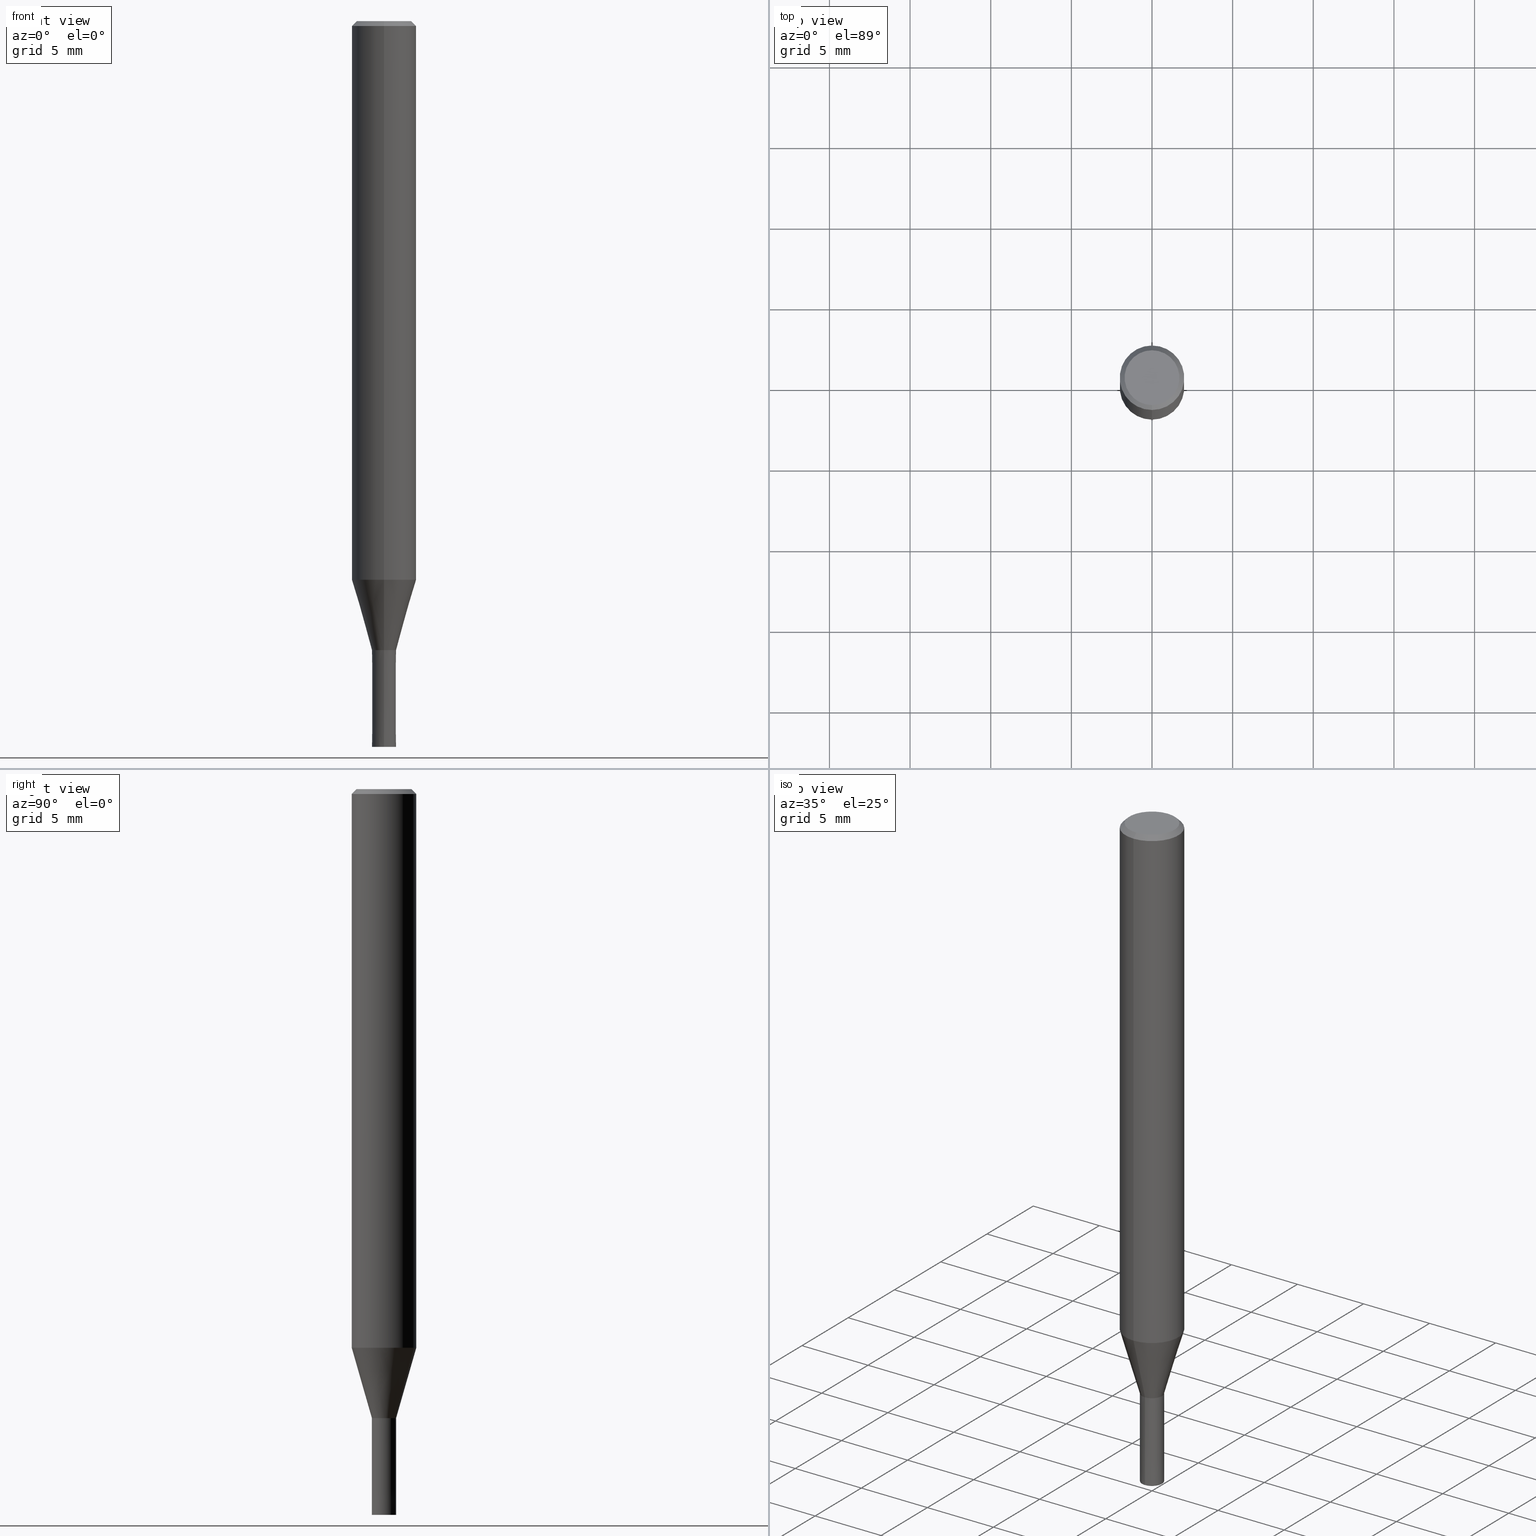
[diagram: canonical four-view strip — front | top / right | iso, engineering-drawing reading convention]
A machine part, canonical four-view strip (front | top / right | iso — engineering-drawing reading convention). The complete STEP part file that produces these views, byte-faithful:
ISO-10303-21;
HEADER;
FILE_DESCRIPTION(('no description'),'unknown implementation level');
FILE_NAME('HMS3015-0600-Huellk.stp','  ',('CIMSOURCE GmbH'),('CADClick - KiM GmbH - www.kimweb.de'),'unknown preprocess','ACIS','unknown authorization');
FILE_SCHEMA(('automotive_design'));
ENDSEC;
DATA;
#1=MECHANICAL_DESIGN_GEOMETRIC_PRESENTATION_REPRESENTATION(' ',(#14,#15,#16,#17,#18,#19,#20,#21,#22,#23,#24,#25,#26,#27,#28,#29,#30,#31,#32,#33,#34,#35,#36,#37,#38,#39,#40,#41,#42,#43,#44,#45,#46,#47,#48,#49,#50,#51,#52,#53,#54,#55,#56,#57,#58,#59,#60,#61,#62,#63,#64,#65,#66,#67,#68,#69,#70,#71,#72,#73,#74,#75,#76,#77,#78,#79,#80,#81,#82,#83,#84,#85,#86,#87,#88,#89),#10);
#2=PRODUCT_DEFINITION_CONTEXT('',#90,'design');
#3=APPLICATION_PROTOCOL_DEFINITION('INTERNATIONAL STANDARD','automotive_design',1994,#90);
#4=PRODUCT_CATEGORY_RELATIONSHIP('NONE','NONE',#91,#92);
#5=SHAPE_DEFINITION_REPRESENTATION(#93,#94);
#6=PRODUCT_DEFINITION_CONTEXT('',#95,'design');
#7=APPLICATION_PROTOCOL_DEFINITION('INTERNATIONAL STANDARD','automotive_design',1994,#95);
#8=PRODUCT_CATEGORY_RELATIONSHIP('NONE','NONE',#96,#97);
#9=SHAPE_DEFINITION_REPRESENTATION(#98,#99);
#10= (GEOMETRIC_REPRESENTATION_CONTEXT(3)GLOBAL_UNCERTAINTY_ASSIGNED_CONTEXT((#102))GLOBAL_UNIT_ASSIGNED_CONTEXT((#104,#105,#106))REPRESENTATION_CONTEXT('NONE','WORKSPACE'));
#14=STYLED_ITEM('',(#108),#109);
#15=STYLED_ITEM('',(#110),#111);
#16=STYLED_ITEM('',(#112),#113);
#17=STYLED_ITEM('',(#114),#115);
#18=STYLED_ITEM('',(#116),#117);
#19=STYLED_ITEM('',(#118),#119);
#20=STYLED_ITEM('',(#120),#121);
#21=STYLED_ITEM('',(#122),#123);
#22=STYLED_ITEM('',(#124),#125);
#23=STYLED_ITEM('',(#126),#127);
#24=STYLED_ITEM('',(#128),#129);
#25=STYLED_ITEM('',(#130),#131);
#26=STYLED_ITEM('',(#132),#133);
#27=STYLED_ITEM('',(#134),#135);
#28=STYLED_ITEM('',(#136),#137);
#29=STYLED_ITEM('',(#138),#139);
#30=STYLED_ITEM('',(#140),#141);
#31=STYLED_ITEM('',(#142),#143);
#32=STYLED_ITEM('',(#144),#145);
#33=STYLED_ITEM('',(#146),#147);
#34=STYLED_ITEM('',(#148),#149);
#35=STYLED_ITEM('',(#150),#151);
#36=STYLED_ITEM('',(#152),#153);
#37=STYLED_ITEM('',(#154),#155);
#38=STYLED_ITEM('',(#156),#157);
#39=STYLED_ITEM('',(#158),#159);
#40=STYLED_ITEM('',(#160),#161);
#41=STYLED_ITEM('',(#162),#163);
#42=STYLED_ITEM('',(#164),#165);
#43=STYLED_ITEM('',(#166),#167);
#44=STYLED_ITEM('',(#168),#169);
#45=STYLED_ITEM('',(#170),#171);
#46=STYLED_ITEM('',(#172),#173);
#47=STYLED_ITEM('',(#174),#175);
#48=STYLED_ITEM('',(#176),#177);
#49=STYLED_ITEM('',(#178),#179);
#50=STYLED_ITEM('',(#180),#181);
#51=STYLED_ITEM('',(#182),#183);
#52=STYLED_ITEM('',(#184),#185);
#53=STYLED_ITEM('',(#186),#187);
#54=STYLED_ITEM('',(#188),#189);
#55=STYLED_ITEM('',(#190),#191);
#56=STYLED_ITEM('',(#192),#193);
#57=STYLED_ITEM('',(#194),#195);
#58=STYLED_ITEM('',(#196),#197);
#59=STYLED_ITEM('',(#198),#199);
#60=STYLED_ITEM('',(#200),#201);
#61=STYLED_ITEM('',(#202),#203);
#62=STYLED_ITEM('',(#204),#205);
#63=STYLED_ITEM('',(#206),#207);
#64=STYLED_ITEM('',(#208),#209);
#65=STYLED_ITEM('',(#210),#211);
#66=STYLED_ITEM('',(#212),#213);
#67=STYLED_ITEM('',(#214),#215);
#68=STYLED_ITEM('',(#216),#217);
#69=STYLED_ITEM('',(#218),#219);
#70=STYLED_ITEM('',(#220),#221);
#71=STYLED_ITEM('',(#222),#223);
#72=STYLED_ITEM('',(#224),#225);
#73=STYLED_ITEM('',(#226),#227);
#74=STYLED_ITEM('',(#228),#229);
#75=STYLED_ITEM('',(#230),#231);
#76=STYLED_ITEM('',(#232),#233);
#77=STYLED_ITEM('',(#234),#235);
#78=STYLED_ITEM('',(#236),#237);
#79=STYLED_ITEM('',(#238),#239);
#80=STYLED_ITEM('',(#240),#241);
#81=STYLED_ITEM('',(#242),#243);
#82=STYLED_ITEM('',(#244),#245);
#83=STYLED_ITEM('',(#246),#247);
#84=STYLED_ITEM('',(#248),#249);
#85=STYLED_ITEM('',(#250),#251);
#86=STYLED_ITEM('',(#252),#253);
#87=STYLED_ITEM('',(#254),#255);
#88=STYLED_ITEM('',(#256),#257);
#89=STYLED_ITEM('',(#258),#259);
#90=APPLICATION_CONTEXT(' ');
#91=PRODUCT_CATEGORY('part','NONE');
#92=PRODUCT_RELATED_PRODUCT_CATEGORY('detail',' ',(#260));
#93=PRODUCT_DEFINITION_SHAPE('NONE','NONE',#261);
#94=ADVANCED_BREP_SHAPE_REPRESENTATION('1',(#241,#262),#10);
#95=APPLICATION_CONTEXT(' ');
#96=PRODUCT_CATEGORY('part','NONE');
#97=PRODUCT_RELATED_PRODUCT_CATEGORY('detail',' ',(#263));
#98=PRODUCT_DEFINITION_SHAPE('NONE','NONE',#264);
#99=ADVANCED_BREP_SHAPE_REPRESENTATION('2',(#187,#265),#10);
#102=UNCERTAINTY_MEASURE_WITH_UNIT(LENGTH_MEASURE(1.0E-006),#104,'','');
#104= (CONVERSION_BASED_UNIT('MILLIMETRE',#268)LENGTH_UNIT()NAMED_UNIT(#271));
#105= (NAMED_UNIT(#273)PLANE_ANGLE_UNIT()SI_UNIT($,.RADIAN.));
#106= (NAMED_UNIT(#273)SOLID_ANGLE_UNIT()SI_UNIT($,.STERADIAN.));
#108=PRESENTATION_STYLE_ASSIGNMENT((#279));
#109=EDGE_CURVE('',#157,#169,#280,.T.);
#110=PRESENTATION_STYLE_ASSIGNMENT((#281));
#111=ADVANCED_FACE('',(#282),#283,.F.);
#112=PRESENTATION_STYLE_ASSIGNMENT((#284));
#113=EDGE_CURVE('',#203,#157,#285,.T.);
#114=PRESENTATION_STYLE_ASSIGNMENT((#286));
#115=VERTEX_POINT('',#287);
#116=PRESENTATION_STYLE_ASSIGNMENT((#288));
#117=VERTEX_POINT('',#289);
#118=PRESENTATION_STYLE_ASSIGNMENT((#290));
#119=VERTEX_POINT('',#291);
#120=PRESENTATION_STYLE_ASSIGNMENT((#292));
#121=VERTEX_POINT('',#293);
#122=PRESENTATION_STYLE_ASSIGNMENT((#294));
#123=EDGE_CURVE('',#147,#233,#295,.T.);
#124=PRESENTATION_STYLE_ASSIGNMENT((#296));
#125=EDGE_CURVE('',#255,#225,#297,.T.);
#126=PRESENTATION_STYLE_ASSIGNMENT((#298));
#127=ADVANCED_FACE('',(#299,#300),#301,.T.);
#128=PRESENTATION_STYLE_ASSIGNMENT((#302));
#129=EDGE_CURVE('',#205,#253,#303,.T.);
#130=PRESENTATION_STYLE_ASSIGNMENT((#304));
#131=EDGE_CURVE('',#233,#147,#305,.T.);
#132=PRESENTATION_STYLE_ASSIGNMENT((#306));
#133=EDGE_CURVE('',#175,#121,#307,.T.);
#134=PRESENTATION_STYLE_ASSIGNMENT((#308));
#135=EDGE_CURVE('',#121,#179,#309,.T.);
#136=PRESENTATION_STYLE_ASSIGNMENT((#310));
#137=EDGE_CURVE('',#225,#255,#311,.T.);
#138=PRESENTATION_STYLE_ASSIGNMENT((#312));
#139=EDGE_CURVE('',#115,#259,#313,.T.);
#140=PRESENTATION_STYLE_ASSIGNMENT((#314));
#141=ADVANCED_FACE('',(#315),#316,.T.);
#142=PRESENTATION_STYLE_ASSIGNMENT((#317));
#143=ADVANCED_FACE('',(#318),#319,.T.);
#144=PRESENTATION_STYLE_ASSIGNMENT((#320));
#145=EDGE_CURVE('',#179,#121,#321,.T.);
#146=PRESENTATION_STYLE_ASSIGNMENT((#322));
#147=VERTEX_POINT('',#323);
#148=PRESENTATION_STYLE_ASSIGNMENT((#324));
#149=EDGE_CURVE('',#235,#115,#325,.T.);
#150=PRESENTATION_STYLE_ASSIGNMENT((#326));
#151=EDGE_CURVE('',#159,#197,#327,.T.);
#152=PRESENTATION_STYLE_ASSIGNMENT((#328));
#153=EDGE_CURVE('',#117,#249,#329,.T.);
#154=PRESENTATION_STYLE_ASSIGNMENT((#330));
#155=EDGE_CURVE('',#179,#245,#331,.T.);
#156=PRESENTATION_STYLE_ASSIGNMENT((#332));
#157=VERTEX_POINT('',#333);
#158=PRESENTATION_STYLE_ASSIGNMENT((#334));
#159=VERTEX_POINT('',#335);
#160=PRESENTATION_STYLE_ASSIGNMENT((#336));
#161=EDGE_CURVE('',#197,#159,#337,.T.);
#162=PRESENTATION_STYLE_ASSIGNMENT((#338));
#163=EDGE_CURVE('',#253,#205,#339,.T.);
#164=PRESENTATION_STYLE_ASSIGNMENT((#340));
#165=ADVANCED_FACE('',(#341),#342,.F.);
#166=PRESENTATION_STYLE_ASSIGNMENT((#343));
#167=EDGE_CURVE('',#259,#119,#344,.T.);
#168=PRESENTATION_STYLE_ASSIGNMENT((#345));
#169=VERTEX_POINT('',#346);
#170=PRESENTATION_STYLE_ASSIGNMENT((#347));
#171=ADVANCED_FACE('',(#348,#349),#350,.T.);
#172=PRESENTATION_STYLE_ASSIGNMENT((#351));
#173=ADVANCED_FACE('',(#352),#353,.T.);
#174=PRESENTATION_STYLE_ASSIGNMENT((#354));
#175=VERTEX_POINT('',#355);
#176=PRESENTATION_STYLE_ASSIGNMENT((#356));
#177=EDGE_CURVE('',#247,#169,#357,.T.);
#178=PRESENTATION_STYLE_ASSIGNMENT((#358));
#179=VERTEX_POINT('',#359);
#180=PRESENTATION_STYLE_ASSIGNMENT((#360));
#181=EDGE_CURVE('',#147,#159,#361,.T.);
#182=PRESENTATION_STYLE_ASSIGNMENT((#362));
#183=ADVANCED_FACE('',(#363),#364,.T.);
#184=PRESENTATION_STYLE_ASSIGNMENT((#365));
#185=ADVANCED_FACE('',(#366),#367,.T.);
#186=PRESENTATION_STYLE_ASSIGNMENT((#368));
#187=MANIFOLD_SOLID_BREP('2',#369);
#188=PRESENTATION_STYLE_ASSIGNMENT((#370));
#189=ADVANCED_FACE('',(#371),#372,.T.);
#190=PRESENTATION_STYLE_ASSIGNMENT((#373));
#191=ADVANCED_FACE('',(#374),#375,.T.);
#192=PRESENTATION_STYLE_ASSIGNMENT((#376));
#193=ADVANCED_FACE('',(#377),#378,.T.);
#194=PRESENTATION_STYLE_ASSIGNMENT((#379));
#195=EDGE_CURVE('',#247,#203,#380,.T.);
#196=PRESENTATION_STYLE_ASSIGNMENT((#381));
#197=VERTEX_POINT('',#382);
#198=PRESENTATION_STYLE_ASSIGNMENT((#383));
#199=ADVANCED_FACE('',(#384),#385,.T.);
#200=PRESENTATION_STYLE_ASSIGNMENT((#386));
#201=EDGE_CURVE('',#245,#175,#387,.T.);
#202=PRESENTATION_STYLE_ASSIGNMENT((#388));
#203=VERTEX_POINT('',#389);
#204=PRESENTATION_STYLE_ASSIGNMENT((#390));
#205=VERTEX_POINT('',#391);
#206=PRESENTATION_STYLE_ASSIGNMENT((#392));
#207=EDGE_CURVE('',#205,#197,#393,.T.);
#208=PRESENTATION_STYLE_ASSIGNMENT((#394));
#209=EDGE_CURVE('',#159,#253,#395,.T.);
#210=PRESENTATION_STYLE_ASSIGNMENT((#396));
#211=EDGE_CURVE('',#157,#203,#397,.T.);
#212=PRESENTATION_STYLE_ASSIGNMENT((#398));
#213=ADVANCED_FACE('',(#399),#400,.T.);
#214=PRESENTATION_STYLE_ASSIGNMENT((#401));
#215=EDGE_CURVE('',#225,#117,#402,.T.);
#216=PRESENTATION_STYLE_ASSIGNMENT((#403));
#217=EDGE_CURVE('',#249,#255,#404,.T.);
#218=PRESENTATION_STYLE_ASSIGNMENT((#405));
#219=EDGE_CURVE('',#119,#235,#406,.T.);
#220=PRESENTATION_STYLE_ASSIGNMENT((#407));
#221=ADVANCED_FACE('',(#408),#409,.T.);
#222=PRESENTATION_STYLE_ASSIGNMENT((#410));
#223=EDGE_CURVE('',#119,#259,#411,.T.);
#224=PRESENTATION_STYLE_ASSIGNMENT((#412));
#225=VERTEX_POINT('',#413);
#226=PRESENTATION_STYLE_ASSIGNMENT((#414));
#227=EDGE_CURVE('',#169,#247,#415,.T.);
#228=PRESENTATION_STYLE_ASSIGNMENT((#416));
#229=EDGE_CURVE('',#115,#235,#417,.T.);
#230=PRESENTATION_STYLE_ASSIGNMENT((#418));
#231=ADVANCED_FACE('',(#419),#420,.T.);
#232=PRESENTATION_STYLE_ASSIGNMENT((#421));
#233=VERTEX_POINT('',#422);
#234=PRESENTATION_STYLE_ASSIGNMENT((#423));
#235=VERTEX_POINT('',#424);
#236=PRESENTATION_STYLE_ASSIGNMENT((#425));
#237=ADVANCED_FACE('',(#426,#427),#428,.T.);
#238=PRESENTATION_STYLE_ASSIGNMENT((#429));
#239=ADVANCED_FACE('',(#430,#431),#432,.T.);
#240=PRESENTATION_STYLE_ASSIGNMENT((#433));
#241=MANIFOLD_SOLID_BREP('1',#434);
#242=PRESENTATION_STYLE_ASSIGNMENT((#435));
#243=EDGE_CURVE('',#249,#117,#436,.T.);
#244=PRESENTATION_STYLE_ASSIGNMENT((#437));
#245=VERTEX_POINT('',#438);
#246=PRESENTATION_STYLE_ASSIGNMENT((#439));
#247=VERTEX_POINT('',#440);
#248=PRESENTATION_STYLE_ASSIGNMENT((#441));
#249=VERTEX_POINT('',#442);
#250=PRESENTATION_STYLE_ASSIGNMENT((#443));
#251=EDGE_CURVE('',#197,#233,#444,.T.);
#252=PRESENTATION_STYLE_ASSIGNMENT((#445));
#253=VERTEX_POINT('',#446);
#254=PRESENTATION_STYLE_ASSIGNMENT((#447));
#255=VERTEX_POINT('',#448);
#256=PRESENTATION_STYLE_ASSIGNMENT((#449));
#257=EDGE_CURVE('',#175,#245,#450,.T.);
#258=PRESENTATION_STYLE_ASSIGNMENT((#451));
#259=VERTEX_POINT('',#452);
#260=PRODUCT('1','1','PART-1-DESC',(#453));
#261=PRODUCT_DEFINITION('NONE','NONE',#454,#2);
#262=AXIS2_PLACEMENT_3D('',#455,#456,#457);
#263=PRODUCT('2','2','PART-2-DESC',(#458));
#264=PRODUCT_DEFINITION('NONE','NONE',#459,#6);
#265=AXIS2_PLACEMENT_3D('',#460,#461,#462);
#268=LENGTH_MEASURE_WITH_UNIT(LENGTH_MEASURE(1.0),#463);
#271=DIMENSIONAL_EXPONENTS(1.0,0.0,0.0,0.0,0.0,0.0,0.0);
#273=DIMENSIONAL_EXPONENTS(0.0,0.0,0.0,0.0,0.0,0.0,0.0);
#279=CURVE_STYLE('',#464,POSITIVE_LENGTH_MEASURE(1.0E-006),#465);
#280=LINE('',#466,#467);
#281=SURFACE_STYLE_USAGE(.BOTH.,#468);
#282=FACE_OUTER_BOUND('',#469,.T.);
#283=CYLINDRICAL_SURFACE('',#470,0.3375);
#284=CURVE_STYLE('',#471,POSITIVE_LENGTH_MEASURE(1.0E-006),#472);
#285=CIRCLE('',#473,0.74995);
#286=POINT_STYLE(' ',#474,POSITIVE_LENGTH_MEASURE(1.0E-006),#475);
#287=CARTESIAN_POINT('',(0.0,0.7499,-39.0));
#288=POINT_STYLE(' ',#476,POSITIVE_LENGTH_MEASURE(1.0E-006),#477);
#289=CARTESIAN_POINT('',(4.13304644415052E-017,-0.3375,-39.0));
#290=POINT_STYLE(' ',#478,POSITIVE_LENGTH_MEASURE(1.0E-006),#479);
#291=CARTESIAN_POINT('',(9.18454765366783E-017,-0.75,-45.0));
#292=POINT_STYLE(' ',#480,POSITIVE_LENGTH_MEASURE(1.0E-006),#481);
#293=CARTESIAN_POINT('',(4.13304644415052E-017,-0.3375,-39.0));
#294=CURVE_STYLE('',#482,POSITIVE_LENGTH_MEASURE(1.0E-006),#483);
#295=CIRCLE('',#484,2.0);
#296=CURVE_STYLE('',#485,POSITIVE_LENGTH_MEASURE(1.0E-006),#486);
#297=CIRCLE('',#487,0.3375);
#298=SURFACE_STYLE_USAGE(.BOTH.,#488);
#299=FACE_OUTER_BOUND('',#489,.T.);
#300=FACE_BOUND('',#490,.T.);
#301=PLANE('',#491);
#302=CURVE_STYLE('',#492,POSITIVE_LENGTH_MEASURE(1.0E-006),#493);
#303=CIRCLE('',#494,1.7);
#304=CURVE_STYLE('',#495,POSITIVE_LENGTH_MEASURE(1.0E-006),#496);
#305=CIRCLE('',#497,2.0);
#306=CURVE_STYLE('',#498,POSITIVE_LENGTH_MEASURE(1.0E-006),#499);
#307=LINE('',#500,#501);
#308=CURVE_STYLE('',#502,POSITIVE_LENGTH_MEASURE(1.0E-006),#503);
#309=CIRCLE('',#504,0.3375);
#310=CURVE_STYLE('',#505,POSITIVE_LENGTH_MEASURE(1.0E-006),#506);
#311=CIRCLE('',#507,0.3375);
#312=CURVE_STYLE('',#508,POSITIVE_LENGTH_MEASURE(1.0E-006),#509);
#313=LINE('',#510,#511);
#314=SURFACE_STYLE_USAGE(.BOTH.,#512);
#315=FACE_OUTER_BOUND('',#513,.T.);
#316=CYLINDRICAL_SURFACE('',#514,0.3375);
#317=SURFACE_STYLE_USAGE(.BOTH.,#515);
#318=FACE_OUTER_BOUND('',#516,.T.);
#319=CYLINDRICAL_SURFACE('',#517,0.3375);
#320=CURVE_STYLE('',#518,POSITIVE_LENGTH_MEASURE(1.0E-006),#519);
#321=CIRCLE('',#520,0.3375);
#322=POINT_STYLE(' ',#521,POSITIVE_LENGTH_MEASURE(1.0E-006),#522);
#323=CARTESIAN_POINT('',(2.44921270764475E-016,-2.0,-34.641));
#324=CURVE_STYLE('',#523,POSITIVE_LENGTH_MEASURE(1.0E-006),#524);
#325=CIRCLE('',#525,0.7499);
#326=CURVE_STYLE('',#526,POSITIVE_LENGTH_MEASURE(1.0E-006),#527);
#327=CIRCLE('',#528,2.0);
#328=CURVE_STYLE('',#529,POSITIVE_LENGTH_MEASURE(1.0E-006),#530);
#329=CIRCLE('',#531,0.3375);
#330=CURVE_STYLE('',#532,POSITIVE_LENGTH_MEASURE(1.0E-006),#533);
#331=LINE('',#534,#535);
#332=POINT_STYLE(' ',#536,POSITIVE_LENGTH_MEASURE(1.0E-006),#537);
#333=CARTESIAN_POINT('',(9.18393535049092E-017,-0.74995,-39.0));
#334=POINT_STYLE(' ',#538,POSITIVE_LENGTH_MEASURE(1.0E-006),#539);
#335=CARTESIAN_POINT('',(2.44921270764475E-016,-2.0,-0.299999999999997));
#336=CURVE_STYLE('',#540,POSITIVE_LENGTH_MEASURE(1.0E-006),#541);
#337=CIRCLE('',#542,2.0);
#338=CURVE_STYLE('',#543,POSITIVE_LENGTH_MEASURE(1.0E-006),#544);
#339=CIRCLE('',#545,1.7);
#340=SURFACE_STYLE_USAGE(.BOTH.,#546);
#341=FACE_OUTER_BOUND('',#547,.T.);
#342=CYLINDRICAL_SURFACE('',#548,0.3375);
#343=CURVE_STYLE('',#549,POSITIVE_LENGTH_MEASURE(1.0E-006),#550);
#344=CIRCLE('',#551,0.75);
#345=POINT_STYLE(' ',#552,POSITIVE_LENGTH_MEASURE(1.0E-006),#553);
#346=CARTESIAN_POINT('',(2.44915147732706E-016,-1.99995,-34.641));
#347=SURFACE_STYLE_USAGE(.BOTH.,#554);
#348=FACE_BOUND('',#555,.T.);
#349=FACE_OUTER_BOUND('',#556,.T.);
#350=PLANE('',#557);
#351=SURFACE_STYLE_USAGE(.BOTH.,#558);
#352=FACE_OUTER_BOUND('',#559,.T.);
#353=CYLINDRICAL_SURFACE('',#560,2.0);
#354=POINT_STYLE(' ',#561,POSITIVE_LENGTH_MEASURE(1.0E-006),#562);
#355=CARTESIAN_POINT('',(4.13304644415052E-017,-0.3375,-44.9));
#356=CURVE_STYLE('',#563,POSITIVE_LENGTH_MEASURE(1.0E-006),#564);
#357=CIRCLE('',#565,1.99995);
#358=POINT_STYLE(' ',#566,POSITIVE_LENGTH_MEASURE(1.0E-006),#567);
#359=CARTESIAN_POINT('',(0.0,0.3375,-39.0));
#360=CURVE_STYLE('',#568,POSITIVE_LENGTH_MEASURE(1.0E-006),#569);
#361=LINE('',#570,#571);
#362=SURFACE_STYLE_USAGE(.BOTH.,#572);
#363=FACE_OUTER_BOUND('',#573,.T.);
#364=CONICAL_SURFACE('',#574,0.74995,1.66666666651216E-005);
#365=SURFACE_STYLE_USAGE(.BOTH.,#575);
#366=FACE_OUTER_BOUND('',#576,.T.);
#367=PLANE('',#577);
#368=SURFACE_STYLE_USAGE(.BOTH.,#578);
#369=CLOSED_SHELL('',(#111,#191,#237,#183,#239,#165));
#370=SURFACE_STYLE_USAGE(.BOTH.,#579);
#371=FACE_OUTER_BOUND('',#580,.T.);
#372=CYLINDRICAL_SURFACE('',#581,2.0);
#373=SURFACE_STYLE_USAGE(.BOTH.,#582);
#374=FACE_OUTER_BOUND('',#583,.T.);
#375=CONICAL_SURFACE('',#584,0.74995,1.66666666651216E-005);
#376=SURFACE_STYLE_USAGE(.BOTH.,#585);
#377=FACE_OUTER_BOUND('',#586,.T.);
#378=CONICAL_SURFACE('',#587,1.37495,0.279268973819818);
#379=CURVE_STYLE('',#588,POSITIVE_LENGTH_MEASURE(1.0E-006),#589);
#380=LINE('',#590,#591);
#381=POINT_STYLE(' ',#592,POSITIVE_LENGTH_MEASURE(1.0E-006),#593);
#382=CARTESIAN_POINT('',(0.0,2.0,-0.299999999999997));
#383=SURFACE_STYLE_USAGE(.BOTH.,#594);
#384=FACE_OUTER_BOUND('',#595,.T.);
#385=CONICAL_SURFACE('',#596,1.85,0.785398163397453);
#386=CURVE_STYLE('',#597,POSITIVE_LENGTH_MEASURE(1.0E-006),#598);
#387=CIRCLE('',#599,0.3375);
#388=POINT_STYLE(' ',#600,POSITIVE_LENGTH_MEASURE(1.0E-006),#601);
#389=CARTESIAN_POINT('',(0.0,0.74995,-39.0));
#390=POINT_STYLE(' ',#602,POSITIVE_LENGTH_MEASURE(1.0E-006),#603);
#391=CARTESIAN_POINT('',(0.0,1.7,0.0));
#392=CURVE_STYLE('',#604,POSITIVE_LENGTH_MEASURE(1.0E-006),#605);
#393=LINE('',#606,#607);
#394=CURVE_STYLE('',#608,POSITIVE_LENGTH_MEASURE(1.0E-006),#609);
#395=LINE('',#610,#611);
#396=CURVE_STYLE('',#612,POSITIVE_LENGTH_MEASURE(1.0E-006),#613);
#397=CIRCLE('',#614,0.74995);
#398=SURFACE_STYLE_USAGE(.BOTH.,#615);
#399=FACE_OUTER_BOUND('',#616,.T.);
#400=CONICAL_SURFACE('',#617,1.37495,0.279268973819818);
#401=CURVE_STYLE('',#618,POSITIVE_LENGTH_MEASURE(1.0E-006),#619);
#402=LINE('',#620,#621);
#403=CURVE_STYLE('',#622,POSITIVE_LENGTH_MEASURE(1.0E-006),#623);
#404=LINE('',#624,#625);
#405=CURVE_STYLE('',#626,POSITIVE_LENGTH_MEASURE(1.0E-006),#627);
#406=LINE('',#628,#629);
#407=SURFACE_STYLE_USAGE(.BOTH.,#630);
#408=FACE_OUTER_BOUND('',#631,.T.);
#409=CONICAL_SURFACE('',#632,1.85,0.785398163397453);
#410=CURVE_STYLE('',#633,POSITIVE_LENGTH_MEASURE(1.0E-006),#634);
#411=CIRCLE('',#635,0.75);
#412=POINT_STYLE(' ',#636,POSITIVE_LENGTH_MEASURE(1.0E-006),#637);
#413=CARTESIAN_POINT('',(4.13304644415052E-017,-0.3375,-45.0));
#414=CURVE_STYLE('',#638,POSITIVE_LENGTH_MEASURE(1.0E-006),#639);
#415=CIRCLE('',#640,1.99995);
#416=CURVE_STYLE('',#641,POSITIVE_LENGTH_MEASURE(1.0E-006),#642);
#417=CIRCLE('',#643,0.7499);
#418=SURFACE_STYLE_USAGE(.BOTH.,#644);
#419=FACE_OUTER_BOUND('',#645,.T.);
#420=PLANE('',#646);
#421=POINT_STYLE(' ',#647,POSITIVE_LENGTH_MEASURE(1.0E-006),#648);
#422=CARTESIAN_POINT('',(0.0,2.0,-34.641));
#423=POINT_STYLE(' ',#649,POSITIVE_LENGTH_MEASURE(1.0E-006),#650);
#424=CARTESIAN_POINT('',(9.18332304731401E-017,-0.7499,-39.0));
#425=SURFACE_STYLE_USAGE(.BOTH.,#651);
#426=FACE_OUTER_BOUND('',#652,.T.);
#427=FACE_BOUND('',#653,.T.);
#428=PLANE('',#654);
#429=SURFACE_STYLE_USAGE(.BOTH.,#655);
#430=FACE_OUTER_BOUND('',#656,.T.);
#431=FACE_BOUND('',#657,.T.);
#432=PLANE('',#658);
#433=SURFACE_STYLE_USAGE(.BOTH.,#659);
#434=CLOSED_SHELL('',(#141,#193,#189,#221,#127,#185,#199,#173,#213,#171,#143,#231));
#435=CURVE_STYLE('',#660,POSITIVE_LENGTH_MEASURE(1.0E-006),#661);
#436=CIRCLE('',#662,0.3375);
#437=POINT_STYLE(' ',#663,POSITIVE_LENGTH_MEASURE(1.0E-006),#664);
#438=CARTESIAN_POINT('',(0.0,0.3375,-44.9));
#439=POINT_STYLE(' ',#665,POSITIVE_LENGTH_MEASURE(1.0E-006),#666);
#440=CARTESIAN_POINT('',(0.0,1.99995,-34.641));
#441=POINT_STYLE(' ',#667,POSITIVE_LENGTH_MEASURE(1.0E-006),#668);
#442=CARTESIAN_POINT('',(0.0,0.3375,-39.0));
#443=CURVE_STYLE('',#669,POSITIVE_LENGTH_MEASURE(1.0E-006),#670);
#444=LINE('',#671,#672);
#445=POINT_STYLE(' ',#673,POSITIVE_LENGTH_MEASURE(1.0E-006),#674);
#446=CARTESIAN_POINT('',(2.08183080149804E-016,-1.7,0.0));
#447=POINT_STYLE(' ',#675,POSITIVE_LENGTH_MEASURE(1.0E-006),#676);
#448=CARTESIAN_POINT('',(0.0,0.3375,-45.0));
#449=CURVE_STYLE('',#677,POSITIVE_LENGTH_MEASURE(1.0E-006),#678);
#450=CIRCLE('',#679,0.3375);
#451=POINT_STYLE(' ',#680,POSITIVE_LENGTH_MEASURE(1.0E-006),#681);
#452=CARTESIAN_POINT('',(0.0,0.75,-45.0));
#453=PRODUCT_CONTEXT('',#90,'mechanical');
#454=PRODUCT_DEFINITION_FORMATION_WITH_SPECIFIED_SOURCE(' ','NONE',#260,.NOT_KNOWN.);
#455=CARTESIAN_POINT('',(0.0,0.0,0.0));
#456=DIRECTION('',(0.0,0.0,1.0));
#457=DIRECTION('',(1.0,0.0,0.0));
#458=PRODUCT_CONTEXT('',#95,'mechanical');
#459=PRODUCT_DEFINITION_FORMATION_WITH_SPECIFIED_SOURCE(' ','NONE',#263,.NOT_KNOWN.);
#460=CARTESIAN_POINT('',(0.0,0.0,0.0));
#461=DIRECTION('',(0.0,0.0,1.0));
#462=DIRECTION('',(1.0,0.0,0.0));
#463= (NAMED_UNIT(#271)LENGTH_UNIT()SI_UNIT(.MILLI.,.METRE.));
#464=DRAUGHTING_PRE_DEFINED_CURVE_FONT('continuous');
#465=COLOUR_RGB('',0.498039215803146,0.498039215803146,0.498039215803146);
#466=CARTESIAN_POINT('',(1.68377250618808E-016,-1.37495,-36.8205));
#467=VECTOR('',#683,1.0);
#468=SURFACE_SIDE_STYLE('',(#684));
#469=EDGE_LOOP('',(#685,#686,#687,#688));
#470=AXIS2_PLACEMENT_3D('',#689,#690,#691);
#471=DRAUGHTING_PRE_DEFINED_CURVE_FONT('continuous');
#472=COLOUR_RGB('',0.498039215803146,0.498039215803146,0.498039215803146);
#473=AXIS2_PLACEMENT_3D('',#692,#693,#694);
#474=PRE_DEFINED_MARKER('');
#475=COLOUR_RGB('',0.800000011920929,0.800000011920929,0.800000011920929);
#476=PRE_DEFINED_MARKER('');
#477=COLOUR_RGB('',0.800000011920929,0.800000011920929,0.800000011920929);
#478=PRE_DEFINED_MARKER('');
#479=COLOUR_RGB('',0.800000011920929,0.800000011920929,0.800000011920929);
#480=PRE_DEFINED_MARKER('');
#481=COLOUR_RGB('',0.498039215803146,0.498039215803146,0.498039215803146);
#482=DRAUGHTING_PRE_DEFINED_CURVE_FONT('continuous');
#483=COLOUR_RGB('',0.498039215803146,0.498039215803146,0.498039215803146);
#484=AXIS2_PLACEMENT_3D('',#695,#696,#697);
#485=DRAUGHTING_PRE_DEFINED_CURVE_FONT('continuous');
#486=COLOUR_RGB('',0.800000011920929,0.800000011920929,0.800000011920929);
#487=AXIS2_PLACEMENT_3D('',#698,#699,#700);
#488=SURFACE_SIDE_STYLE('',(#701));
#489=EDGE_LOOP('',(#702,#703));
#490=EDGE_LOOP('',(#704,#705));
#491=AXIS2_PLACEMENT_3D('',#706,#707,#708);
#492=DRAUGHTING_PRE_DEFINED_CURVE_FONT('continuous');
#493=COLOUR_RGB('',0.498039215803146,0.498039215803146,0.498039215803146);
#494=AXIS2_PLACEMENT_3D('',#709,#710,#711);
#495=DRAUGHTING_PRE_DEFINED_CURVE_FONT('continuous');
#496=COLOUR_RGB('',0.498039215803146,0.498039215803146,0.498039215803146);
#497=AXIS2_PLACEMENT_3D('',#712,#713,#714);
#498=DRAUGHTING_PRE_DEFINED_CURVE_FONT('continuous');
#499=COLOUR_RGB('',0.498039215803146,0.498039215803146,0.498039215803146);
#500=CARTESIAN_POINT('',(4.13304644415052E-017,-0.3375,-41.95));
#501=VECTOR('',#715,1.0);
#502=DRAUGHTING_PRE_DEFINED_CURVE_FONT('continuous');
#503=COLOUR_RGB('',0.498039215803146,0.498039215803146,0.498039215803146);
#504=AXIS2_PLACEMENT_3D('',#716,#717,#718);
#505=DRAUGHTING_PRE_DEFINED_CURVE_FONT('continuous');
#506=COLOUR_RGB('',0.800000011920929,0.800000011920929,0.800000011920929);
#507=AXIS2_PLACEMENT_3D('',#719,#720,#721);
#508=DRAUGHTING_PRE_DEFINED_CURVE_FONT('continuous');
#509=COLOUR_RGB('',0.800000011920929,0.800000011920929,0.800000011920929);
#510=CARTESIAN_POINT('',(-9.18393535049092E-017,0.74995,-42.0));
#511=VECTOR('',#722,1.0);
#512=SURFACE_SIDE_STYLE('',(#723));
#513=EDGE_LOOP('',(#724,#725,#726,#727));
#514=AXIS2_PLACEMENT_3D('',#728,#729,#730);
#515=SURFACE_SIDE_STYLE('',(#731));
#516=EDGE_LOOP('',(#732,#733,#734,#735));
#517=AXIS2_PLACEMENT_3D('',#736,#737,#738);
#518=DRAUGHTING_PRE_DEFINED_CURVE_FONT('continuous');
#519=COLOUR_RGB('',0.498039215803146,0.498039215803146,0.498039215803146);
#520=AXIS2_PLACEMENT_3D('',#739,#740,#741);
#521=PRE_DEFINED_MARKER('');
#522=COLOUR_RGB('',0.498039215803146,0.498039215803146,0.498039215803146);
#523=DRAUGHTING_PRE_DEFINED_CURVE_FONT('continuous');
#524=COLOUR_RGB('',0.800000011920929,0.800000011920929,0.800000011920929);
#525=AXIS2_PLACEMENT_3D('',#742,#743,#744);
#526=DRAUGHTING_PRE_DEFINED_CURVE_FONT('continuous');
#527=COLOUR_RGB('',0.498039215803146,0.498039215803146,0.498039215803146);
#528=AXIS2_PLACEMENT_3D('',#745,#746,#747);
#529=DRAUGHTING_PRE_DEFINED_CURVE_FONT('continuous');
#530=COLOUR_RGB('',0.800000011920929,0.800000011920929,0.800000011920929);
#531=AXIS2_PLACEMENT_3D('',#748,#749,#750);
#532=DRAUGHTING_PRE_DEFINED_CURVE_FONT('continuous');
#533=COLOUR_RGB('',0.498039215803146,0.498039215803146,0.498039215803146);
#534=CARTESIAN_POINT('',(-4.13304644415052E-017,0.3375,-41.95));
#535=VECTOR('',#751,1.0);
#536=PRE_DEFINED_MARKER('');
#537=COLOUR_RGB('',0.498039215803146,0.498039215803146,0.498039215803146);
#538=PRE_DEFINED_MARKER('');
#539=COLOUR_RGB('',0.498039215803146,0.498039215803146,0.498039215803146);
#540=DRAUGHTING_PRE_DEFINED_CURVE_FONT('continuous');
#541=COLOUR_RGB('',0.498039215803146,0.498039215803146,0.498039215803146);
#542=AXIS2_PLACEMENT_3D('',#752,#753,#754);
#543=DRAUGHTING_PRE_DEFINED_CURVE_FONT('continuous');
#544=COLOUR_RGB('',0.498039215803146,0.498039215803146,0.498039215803146);
#545=AXIS2_PLACEMENT_3D('',#755,#756,#757);
#546=SURFACE_SIDE_STYLE('',(#758));
#547=EDGE_LOOP('',(#759,#760,#761,#762));
#548=AXIS2_PLACEMENT_3D('',#763,#764,#765);
#549=DRAUGHTING_PRE_DEFINED_CURVE_FONT('continuous');
#550=COLOUR_RGB('',0.800000011920929,0.800000011920929,0.800000011920929);
#551=AXIS2_PLACEMENT_3D('',#766,#767,#768);
#552=PRE_DEFINED_MARKER('');
#553=COLOUR_RGB('',0.498039215803146,0.498039215803146,0.498039215803146);
#554=SURFACE_SIDE_STYLE('',(#769));
#555=EDGE_LOOP('',(#770,#771));
#556=EDGE_LOOP('',(#772,#773));
#557=AXIS2_PLACEMENT_3D('',#774,#775,#776);
#558=SURFACE_SIDE_STYLE('',(#777));
#559=EDGE_LOOP('',(#778,#779,#780,#781));
#560=AXIS2_PLACEMENT_3D('',#782,#783,#784);
#561=PRE_DEFINED_MARKER('');
#562=COLOUR_RGB('',0.498039215803146,0.498039215803146,0.498039215803146);
#563=DRAUGHTING_PRE_DEFINED_CURVE_FONT('continuous');
#564=COLOUR_RGB('',0.498039215803146,0.498039215803146,0.498039215803146);
#565=AXIS2_PLACEMENT_3D('',#785,#786,#787);
#566=PRE_DEFINED_MARKER('');
#567=COLOUR_RGB('',0.498039215803146,0.498039215803146,0.498039215803146);
#568=DRAUGHTING_PRE_DEFINED_CURVE_FONT('continuous');
#569=COLOUR_RGB('',0.498039215803146,0.498039215803146,0.498039215803146);
#570=CARTESIAN_POINT('',(2.44921270764475E-016,-2.0,-17.4705));
#571=VECTOR('',#788,1.0);
#572=SURFACE_SIDE_STYLE('',(#789));
#573=EDGE_LOOP('',(#790,#791,#792,#793));
#574=AXIS2_PLACEMENT_3D('',#794,#795,#796);
#575=SURFACE_SIDE_STYLE('',(#797));
#576=EDGE_LOOP('',(#798,#799));
#577=AXIS2_PLACEMENT_3D('',#800,#801,#802);
#578=SURFACE_SIDE_STYLE('',(#803));
#579=SURFACE_SIDE_STYLE('',(#804));
#580=EDGE_LOOP('',(#805,#806,#807,#808));
#581=AXIS2_PLACEMENT_3D('',#809,#810,#811);
#582=SURFACE_SIDE_STYLE('',(#812));
#583=EDGE_LOOP('',(#813,#814,#815,#816));
#584=AXIS2_PLACEMENT_3D('',#817,#818,#819);
#585=SURFACE_SIDE_STYLE('',(#820));
#586=EDGE_LOOP('',(#821,#822,#823,#824));
#587=AXIS2_PLACEMENT_3D('',#825,#826,#827);
#588=DRAUGHTING_PRE_DEFINED_CURVE_FONT('continuous');
#589=COLOUR_RGB('',0.498039215803146,0.498039215803146,0.498039215803146);
#590=CARTESIAN_POINT('',(-1.68377250618808E-016,1.37495,-36.8205));
#591=VECTOR('',#828,1.0);
#592=PRE_DEFINED_MARKER('');
#593=COLOUR_RGB('',0.498039215803146,0.498039215803146,0.498039215803146);
#594=SURFACE_SIDE_STYLE('',(#829));
#595=EDGE_LOOP('',(#830,#831,#832,#833));
#596=AXIS2_PLACEMENT_3D('',#834,#835,#836);
#597=DRAUGHTING_PRE_DEFINED_CURVE_FONT('continuous');
#598=COLOUR_RGB('',0.498039215803146,0.498039215803146,0.498039215803146);
#599=AXIS2_PLACEMENT_3D('',#837,#838,#839);
#600=PRE_DEFINED_MARKER('');
#601=COLOUR_RGB('',0.498039215803146,0.498039215803146,0.498039215803146);
#602=PRE_DEFINED_MARKER('');
#603=COLOUR_RGB('',0.498039215803146,0.498039215803146,0.498039215803146);
#604=DRAUGHTING_PRE_DEFINED_CURVE_FONT('continuous');
#605=COLOUR_RGB('',0.498039215803146,0.498039215803146,0.498039215803146);
#606=CARTESIAN_POINT('',(-2.2655217545714E-016,1.85,-0.149999999999999));
#607=VECTOR('',#840,1.0);
#608=DRAUGHTING_PRE_DEFINED_CURVE_FONT('continuous');
#609=COLOUR_RGB('',0.498039215803146,0.498039215803146,0.498039215803146);
#610=CARTESIAN_POINT('',(2.2655217545714E-016,-1.85,-0.149999999999999));
#611=VECTOR('',#841,1.0);
#612=DRAUGHTING_PRE_DEFINED_CURVE_FONT('continuous');
#613=COLOUR_RGB('',0.498039215803146,0.498039215803146,0.498039215803146);
#614=AXIS2_PLACEMENT_3D('',#842,#843,#844);
#615=SURFACE_SIDE_STYLE('',(#845));
#616=EDGE_LOOP('',(#846,#847,#848,#849));
#617=AXIS2_PLACEMENT_3D('',#850,#851,#852);
#618=DRAUGHTING_PRE_DEFINED_CURVE_FONT('continuous');
#619=COLOUR_RGB('',0.800000011920929,0.800000011920929,0.800000011920929);
#620=CARTESIAN_POINT('',(4.13304644415052E-017,-0.3375,-42.0));
#621=VECTOR('',#853,1.0);
#622=DRAUGHTING_PRE_DEFINED_CURVE_FONT('continuous');
#623=COLOUR_RGB('',0.800000011920929,0.800000011920929,0.800000011920929);
#624=CARTESIAN_POINT('',(-4.13304644415052E-017,0.3375,-42.0));
#625=VECTOR('',#854,1.0);
#626=DRAUGHTING_PRE_DEFINED_CURVE_FONT('continuous');
#627=COLOUR_RGB('',0.800000011920929,0.800000011920929,0.800000011920929);
#628=CARTESIAN_POINT('',(9.18393535049092E-017,-0.74995,-42.0));
#629=VECTOR('',#855,1.0);
#630=SURFACE_SIDE_STYLE('',(#856));
#631=EDGE_LOOP('',(#857,#858,#859,#860));
#632=AXIS2_PLACEMENT_3D('',#861,#862,#863);
#633=DRAUGHTING_PRE_DEFINED_CURVE_FONT('continuous');
#634=COLOUR_RGB('',0.800000011920929,0.800000011920929,0.800000011920929);
#635=AXIS2_PLACEMENT_3D('',#864,#865,#866);
#636=PRE_DEFINED_MARKER('');
#637=COLOUR_RGB('',0.800000011920929,0.800000011920929,0.800000011920929);
#638=DRAUGHTING_PRE_DEFINED_CURVE_FONT('continuous');
#639=COLOUR_RGB('',0.498039215803146,0.498039215803146,0.498039215803146);
#640=AXIS2_PLACEMENT_3D('',#867,#868,#869);
#641=DRAUGHTING_PRE_DEFINED_CURVE_FONT('continuous');
#642=COLOUR_RGB('',0.800000011920929,0.800000011920929,0.800000011920929);
#643=AXIS2_PLACEMENT_3D('',#870,#871,#872);
#644=SURFACE_SIDE_STYLE('',(#873));
#645=EDGE_LOOP('',(#874,#875));
#646=AXIS2_PLACEMENT_3D('',#876,#877,#878);
#647=PRE_DEFINED_MARKER('');
#648=COLOUR_RGB('',0.498039215803146,0.498039215803146,0.498039215803146);
#649=PRE_DEFINED_MARKER('');
#650=COLOUR_RGB('',0.800000011920929,0.800000011920929,0.800000011920929);
#651=SURFACE_SIDE_STYLE('',(#879));
#652=EDGE_LOOP('',(#880,#881));
#653=EDGE_LOOP('',(#882,#883));
#654=AXIS2_PLACEMENT_3D('',#884,#885,#886);
#655=SURFACE_SIDE_STYLE('',(#887));
#656=EDGE_LOOP('',(#888,#889));
#657=EDGE_LOOP('',(#890,#891));
#658=AXIS2_PLACEMENT_3D('',#892,#893,#894);
#659=SURFACE_SIDE_STYLE('',(#895));
#660=DRAUGHTING_PRE_DEFINED_CURVE_FONT('continuous');
#661=COLOUR_RGB('',0.800000011920929,0.800000011920929,0.800000011920929);
#662=AXIS2_PLACEMENT_3D('',#896,#897,#898);
#663=PRE_DEFINED_MARKER('');
#664=COLOUR_RGB('',0.498039215803146,0.498039215803146,0.498039215803146);
#665=PRE_DEFINED_MARKER('');
#666=COLOUR_RGB('',0.498039215803146,0.498039215803146,0.498039215803146);
#667=PRE_DEFINED_MARKER('');
#668=COLOUR_RGB('',0.800000011920929,0.800000011920929,0.800000011920929);
#669=DRAUGHTING_PRE_DEFINED_CURVE_FONT('continuous');
#670=COLOUR_RGB('',0.498039215803146,0.498039215803146,0.498039215803146);
#671=CARTESIAN_POINT('',(-2.44921270764475E-016,2.0,-17.4705));
#672=VECTOR('',#899,1.0);
#673=PRE_DEFINED_MARKER('');
#674=COLOUR_RGB('',0.498039215803146,0.498039215803146,0.498039215803146);
#675=PRE_DEFINED_MARKER('');
#676=COLOUR_RGB('',0.800000011920929,0.800000011920929,0.800000011920929);
#677=DRAUGHTING_PRE_DEFINED_CURVE_FONT('continuous');
#678=COLOUR_RGB('',0.498039215803146,0.498039215803146,0.498039215803146);
#679=AXIS2_PLACEMENT_3D('',#900,#901,#902);
#680=PRE_DEFINED_MARKER('');
#681=COLOUR_RGB('',0.800000011920929,0.800000011920929,0.800000011920929);
#683=DIRECTION('',(3.375664374138E-017,-0.27565301809855,0.961257204713265));
#684=SURFACE_STYLE_FILL_AREA(#903);
#685=ORIENTED_EDGE('',*,*,#217,.F.);
#686=ORIENTED_EDGE('',*,*,#153,.F.);
#687=ORIENTED_EDGE('',*,*,#215,.F.);
#688=ORIENTED_EDGE('',*,*,#137,.T.);
#689=CARTESIAN_POINT('',(0.0,0.0,-42.0));
#690=DIRECTION('',(-0.0,-0.0,1.0));
#691=DIRECTION('',(0.0,1.0,0.0));
#692=CARTESIAN_POINT('',(0.0,0.0,-39.0));
#693=DIRECTION('',(0.0,0.0,-1.0));
#694=DIRECTION('',(0.0,1.0,0.0));
#695=CARTESIAN_POINT('',(0.0,0.0,-34.641));
#696=DIRECTION('',(0.0,0.0,-1.0));
#697=DIRECTION('',(0.0,1.0,0.0));
#698=CARTESIAN_POINT('',(0.0,0.0,-45.0));
#699=DIRECTION('',(0.0,0.0,-1.0));
#700=DIRECTION('',(0.0,1.0,0.0));
#701=SURFACE_STYLE_FILL_AREA(#904);
#702=ORIENTED_EDGE('',*,*,#131,.T.);
#703=ORIENTED_EDGE('',*,*,#123,.T.);
#704=ORIENTED_EDGE('',*,*,#177,.F.);
#705=ORIENTED_EDGE('',*,*,#227,.F.);
#706=CARTESIAN_POINT('',(0.0,1.0,-34.641));
#707=DIRECTION('',(0.0,0.0,-1.0));
#708=DIRECTION('',(0.0,1.0,0.0));
#709=CARTESIAN_POINT('',(0.0,0.0,0.0));
#710=DIRECTION('',(0.0,0.0,-1.0));
#711=DIRECTION('',(0.0,1.0,0.0));
#712=CARTESIAN_POINT('',(0.0,0.0,-34.641));
#713=DIRECTION('',(0.0,0.0,-1.0));
#714=DIRECTION('',(0.0,1.0,0.0));
#715=DIRECTION('',(-0.0,-0.0,1.0));
#716=CARTESIAN_POINT('',(0.0,0.0,-39.0));
#717=DIRECTION('',(0.0,0.0,-1.0));
#718=DIRECTION('',(0.0,1.0,0.0));
#719=CARTESIAN_POINT('',(0.0,0.0,-45.0));
#720=DIRECTION('',(0.0,0.0,-1.0));
#721=DIRECTION('',(0.0,1.0,0.0));
#722=DIRECTION('',(-2.04101058942026E-021,1.666666666435E-005,-0.999999999861111));
#723=SURFACE_STYLE_FILL_AREA(#905);
#724=ORIENTED_EDGE('',*,*,#155,.F.);
#725=ORIENTED_EDGE('',*,*,#145,.T.);
#726=ORIENTED_EDGE('',*,*,#133,.F.);
#727=ORIENTED_EDGE('',*,*,#201,.F.);
#728=CARTESIAN_POINT('',(0.0,0.0,-41.95));
#729=DIRECTION('',(-0.0,-0.0,1.0));
#730=DIRECTION('',(0.0,1.0,0.0));
#731=SURFACE_STYLE_FILL_AREA(#906);
#732=ORIENTED_EDGE('',*,*,#155,.T.);
#733=ORIENTED_EDGE('',*,*,#257,.F.);
#734=ORIENTED_EDGE('',*,*,#133,.T.);
#735=ORIENTED_EDGE('',*,*,#135,.T.);
#736=CARTESIAN_POINT('',(0.0,0.0,-41.95));
#737=DIRECTION('',(-0.0,-0.0,1.0));
#738=DIRECTION('',(0.0,1.0,0.0));
#739=CARTESIAN_POINT('',(0.0,0.0,-39.0));
#740=DIRECTION('',(0.0,0.0,-1.0));
#741=DIRECTION('',(0.0,1.0,0.0));
#742=CARTESIAN_POINT('',(0.0,0.0,-39.0));
#743=DIRECTION('',(0.0,0.0,-1.0));
#744=DIRECTION('',(0.0,1.0,0.0));
#745=CARTESIAN_POINT('',(0.0,0.0,-0.299999999999997));
#746=DIRECTION('',(0.0,0.0,-1.0));
#747=DIRECTION('',(0.0,1.0,0.0));
#748=CARTESIAN_POINT('',(0.0,0.0,-39.0));
#749=DIRECTION('',(0.0,0.0,-1.0));
#750=DIRECTION('',(0.0,1.0,0.0));
#751=DIRECTION('',(0.0,0.0,-1.0));
#752=CARTESIAN_POINT('',(0.0,0.0,-0.299999999999997));
#753=DIRECTION('',(0.0,0.0,-1.0));
#754=DIRECTION('',(0.0,1.0,0.0));
#755=CARTESIAN_POINT('',(0.0,0.0,0.0));
#756=DIRECTION('',(0.0,0.0,-1.0));
#757=DIRECTION('',(0.0,1.0,0.0));
#758=SURFACE_STYLE_FILL_AREA(#907);
#759=ORIENTED_EDGE('',*,*,#217,.T.);
#760=ORIENTED_EDGE('',*,*,#125,.T.);
#761=ORIENTED_EDGE('',*,*,#215,.T.);
#762=ORIENTED_EDGE('',*,*,#243,.F.);
#763=CARTESIAN_POINT('',(0.0,0.0,-42.0));
#764=DIRECTION('',(-0.0,-0.0,1.0));
#765=DIRECTION('',(0.0,1.0,0.0));
#766=CARTESIAN_POINT('',(0.0,0.0,-45.0));
#767=DIRECTION('',(0.0,0.0,-1.0));
#768=DIRECTION('',(0.0,1.0,0.0));
#769=SURFACE_STYLE_FILL_AREA(#908);
#770=ORIENTED_EDGE('',*,*,#145,.F.);
#771=ORIENTED_EDGE('',*,*,#135,.F.);
#772=ORIENTED_EDGE('',*,*,#113,.T.);
#773=ORIENTED_EDGE('',*,*,#211,.T.);
#774=CARTESIAN_POINT('',(0.0,0.543725,-39.0));
#775=DIRECTION('',(0.0,0.0,-1.0));
#776=DIRECTION('',(0.0,1.0,0.0));
#777=SURFACE_STYLE_FILL_AREA(#909);
#778=ORIENTED_EDGE('',*,*,#251,.T.);
#779=ORIENTED_EDGE('',*,*,#123,.F.);
#780=ORIENTED_EDGE('',*,*,#181,.T.);
#781=ORIENTED_EDGE('',*,*,#151,.T.);
#782=CARTESIAN_POINT('',(0.0,0.0,-17.4705));
#783=DIRECTION('',(-0.0,-0.0,1.0));
#784=DIRECTION('',(0.0,1.0,0.0));
#785=CARTESIAN_POINT('',(0.0,0.0,-34.641));
#786=DIRECTION('',(0.0,0.0,-1.0));
#787=DIRECTION('',(0.0,1.0,0.0));
#788=DIRECTION('',(-0.0,-0.0,1.0));
#789=SURFACE_STYLE_FILL_AREA(#910);
#790=ORIENTED_EDGE('',*,*,#139,.T.);
#791=ORIENTED_EDGE('',*,*,#223,.F.);
#792=ORIENTED_EDGE('',*,*,#219,.T.);
#793=ORIENTED_EDGE('',*,*,#149,.T.);
#794=CARTESIAN_POINT('',(0.0,0.0,-42.0));
#795=DIRECTION('',(0.0,-0.0,-1.0));
#796=DIRECTION('',(0.0,1.0,0.0));
#797=SURFACE_STYLE_FILL_AREA(#911);
#798=ORIENTED_EDGE('',*,*,#129,.F.);
#799=ORIENTED_EDGE('',*,*,#163,.F.);
#800=CARTESIAN_POINT('',(0.0,0.85,0.0));
#801=DIRECTION('',(-0.0,0.0,1.0));
#802=DIRECTION('',(0.0,-1.0,0.0));
#803=SURFACE_STYLE_FILL_AREA(#912);
#804=SURFACE_STYLE_FILL_AREA(#913);
#805=ORIENTED_EDGE('',*,*,#251,.F.);
#806=ORIENTED_EDGE('',*,*,#161,.T.);
#807=ORIENTED_EDGE('',*,*,#181,.F.);
#808=ORIENTED_EDGE('',*,*,#131,.F.);
#809=CARTESIAN_POINT('',(0.0,0.0,-17.4705));
#810=DIRECTION('',(-0.0,-0.0,1.0));
#811=DIRECTION('',(0.0,1.0,0.0));
#812=SURFACE_STYLE_FILL_AREA(#914);
#813=ORIENTED_EDGE('',*,*,#139,.F.);
#814=ORIENTED_EDGE('',*,*,#229,.T.);
#815=ORIENTED_EDGE('',*,*,#219,.F.);
#816=ORIENTED_EDGE('',*,*,#167,.F.);
#817=CARTESIAN_POINT('',(0.0,0.0,-42.0));
#818=DIRECTION('',(0.0,-0.0,-1.0));
#819=DIRECTION('',(0.0,1.0,0.0));
#820=SURFACE_STYLE_FILL_AREA(#915);
#821=ORIENTED_EDGE('',*,*,#195,.F.);
#822=ORIENTED_EDGE('',*,*,#177,.T.);
#823=ORIENTED_EDGE('',*,*,#109,.F.);
#824=ORIENTED_EDGE('',*,*,#113,.F.);
#825=CARTESIAN_POINT('',(0.0,0.0,-36.8205));
#826=DIRECTION('',(-0.0,-0.0,1.0));
#827=DIRECTION('',(0.0,1.0,0.0));
#828=DIRECTION('',(3.375664374138E-017,-0.27565301809855,-0.961257204713265));
#829=SURFACE_STYLE_FILL_AREA(#916);
#830=ORIENTED_EDGE('',*,*,#207,.T.);
#831=ORIENTED_EDGE('',*,*,#151,.F.);
#832=ORIENTED_EDGE('',*,*,#209,.T.);
#833=ORIENTED_EDGE('',*,*,#163,.T.);
#834=CARTESIAN_POINT('',(0.0,0.0,-0.149999999999999));
#835=DIRECTION('',(0.0,-0.0,-1.0));
#836=DIRECTION('',(0.0,1.0,0.0));
#837=CARTESIAN_POINT('',(0.0,0.0,-44.9));
#838=DIRECTION('',(0.0,0.0,-1.0));
#839=DIRECTION('',(0.0,1.0,0.0));
#840=DIRECTION('',(-8.6592745707194E-017,0.707106781186551,-0.707106781186544));
#841=DIRECTION('',(-8.6592745707194E-017,0.707106781186551,0.707106781186544));
#842=CARTESIAN_POINT('',(0.0,0.0,-39.0));
#843=DIRECTION('',(0.0,0.0,-1.0));
#844=DIRECTION('',(0.0,1.0,0.0));
#845=SURFACE_STYLE_FILL_AREA(#917);
#846=ORIENTED_EDGE('',*,*,#195,.T.);
#847=ORIENTED_EDGE('',*,*,#211,.F.);
#848=ORIENTED_EDGE('',*,*,#109,.T.);
#849=ORIENTED_EDGE('',*,*,#227,.T.);
#850=CARTESIAN_POINT('',(0.0,0.0,-36.8205));
#851=DIRECTION('',(-0.0,-0.0,1.0));
#852=DIRECTION('',(0.0,1.0,0.0));
#853=DIRECTION('',(0.0,-0.0,1.0));
#854=DIRECTION('',(0.0,-0.0,-1.0));
#855=DIRECTION('',(-2.04101058942026E-021,1.666666666435E-005,0.999999999861111));
#856=SURFACE_STYLE_FILL_AREA(#918);
#857=ORIENTED_EDGE('',*,*,#207,.F.);
#858=ORIENTED_EDGE('',*,*,#129,.T.);
#859=ORIENTED_EDGE('',*,*,#209,.F.);
#860=ORIENTED_EDGE('',*,*,#161,.F.);
#861=CARTESIAN_POINT('',(0.0,0.0,-0.149999999999999));
#862=DIRECTION('',(0.0,-0.0,-1.0));
#863=DIRECTION('',(0.0,1.0,0.0));
#864=CARTESIAN_POINT('',(0.0,0.0,-45.0));
#865=DIRECTION('',(0.0,0.0,-1.0));
#866=DIRECTION('',(0.0,1.0,0.0));
#867=CARTESIAN_POINT('',(0.0,0.0,-34.641));
#868=DIRECTION('',(0.0,0.0,-1.0));
#869=DIRECTION('',(0.0,1.0,0.0));
#870=CARTESIAN_POINT('',(0.0,0.0,-39.0));
#871=DIRECTION('',(0.0,0.0,-1.0));
#872=DIRECTION('',(0.0,1.0,0.0));
#873=SURFACE_STYLE_FILL_AREA(#919);
#874=ORIENTED_EDGE('',*,*,#201,.T.);
#875=ORIENTED_EDGE('',*,*,#257,.T.);
#876=CARTESIAN_POINT('',(0.0,0.16875,-44.9));
#877=DIRECTION('',(0.0,0.0,-1.0));
#878=DIRECTION('',(0.0,1.0,0.0));
#879=SURFACE_STYLE_FILL_AREA(#920);
#880=ORIENTED_EDGE('',*,*,#229,.F.);
#881=ORIENTED_EDGE('',*,*,#149,.F.);
#882=ORIENTED_EDGE('',*,*,#243,.T.);
#883=ORIENTED_EDGE('',*,*,#153,.T.);
#884=CARTESIAN_POINT('',(0.0,0.5437,-39.0));
#885=DIRECTION('',(-0.0,0.0,1.0));
#886=DIRECTION('',(0.0,-1.0,0.0));
#887=SURFACE_STYLE_FILL_AREA(#921);
#888=ORIENTED_EDGE('',*,*,#167,.T.);
#889=ORIENTED_EDGE('',*,*,#223,.T.);
#890=ORIENTED_EDGE('',*,*,#125,.F.);
#891=ORIENTED_EDGE('',*,*,#137,.F.);
#892=CARTESIAN_POINT('',(0.0,0.54125,-45.0));
#893=DIRECTION('',(0.0,0.0,-1.0));
#894=DIRECTION('',(0.0,1.0,0.0));
#895=SURFACE_STYLE_FILL_AREA(#922);
#896=CARTESIAN_POINT('',(0.0,0.0,-39.0));
#897=DIRECTION('',(0.0,0.0,-1.0));
#898=DIRECTION('',(0.0,1.0,0.0));
#899=DIRECTION('',(0.0,0.0,-1.0));
#900=CARTESIAN_POINT('',(0.0,0.0,-44.9));
#901=DIRECTION('',(0.0,0.0,-1.0));
#902=DIRECTION('',(0.0,1.0,0.0));
#903=FILL_AREA_STYLE('',(#923));
#904=FILL_AREA_STYLE('',(#924));
#905=FILL_AREA_STYLE('',(#925));
#906=FILL_AREA_STYLE('',(#926));
#907=FILL_AREA_STYLE('',(#927));
#908=FILL_AREA_STYLE('',(#928));
#909=FILL_AREA_STYLE('',(#929));
#910=FILL_AREA_STYLE('',(#930));
#911=FILL_AREA_STYLE('',(#931));
#912=FILL_AREA_STYLE('',(#932));
#913=FILL_AREA_STYLE('',(#933));
#914=FILL_AREA_STYLE('',(#934));
#915=FILL_AREA_STYLE('',(#935));
#916=FILL_AREA_STYLE('',(#936));
#917=FILL_AREA_STYLE('',(#937));
#918=FILL_AREA_STYLE('',(#938));
#919=FILL_AREA_STYLE('',(#939));
#920=FILL_AREA_STYLE('',(#940));
#921=FILL_AREA_STYLE('',(#941));
#922=FILL_AREA_STYLE('',(#942));
#923=FILL_AREA_STYLE_COLOUR('',#943);
#924=FILL_AREA_STYLE_COLOUR('',#944);
#925=FILL_AREA_STYLE_COLOUR('',#945);
#926=FILL_AREA_STYLE_COLOUR('',#946);
#927=FILL_AREA_STYLE_COLOUR('',#947);
#928=FILL_AREA_STYLE_COLOUR('',#948);
#929=FILL_AREA_STYLE_COLOUR('',#949);
#930=FILL_AREA_STYLE_COLOUR('',#950);
#931=FILL_AREA_STYLE_COLOUR('',#951);
#932=FILL_AREA_STYLE_COLOUR('',#952);
#933=FILL_AREA_STYLE_COLOUR('',#953);
#934=FILL_AREA_STYLE_COLOUR('',#954);
#935=FILL_AREA_STYLE_COLOUR('',#955);
#936=FILL_AREA_STYLE_COLOUR('',#956);
#937=FILL_AREA_STYLE_COLOUR('',#957);
#938=FILL_AREA_STYLE_COLOUR('',#958);
#939=FILL_AREA_STYLE_COLOUR('',#959);
#940=FILL_AREA_STYLE_COLOUR('',#960);
#941=FILL_AREA_STYLE_COLOUR('',#961);
#942=FILL_AREA_STYLE_COLOUR('',#962);
#943=COLOUR_RGB('',0.800000011920929,0.800000011920929,0.800000011920929);
#944=COLOUR_RGB('',0.498039215803146,0.498039215803146,0.498039215803146);
#945=COLOUR_RGB('',0.498039215803146,0.498039215803146,0.498039215803146);
#946=COLOUR_RGB('',0.498039215803146,0.498039215803146,0.498039215803146);
#947=COLOUR_RGB('',0.800000011920929,0.800000011920929,0.800000011920929);
#948=COLOUR_RGB('',0.498039215803146,0.498039215803146,0.498039215803146);
#949=COLOUR_RGB('',0.498039215803146,0.498039215803146,0.498039215803146);
#950=COLOUR_RGB('',0.800000011920929,0.800000011920929,0.800000011920929);
#951=COLOUR_RGB('',0.498039215803146,0.498039215803146,0.498039215803146);
#952=COLOUR_RGB('',0.800000011920929,0.800000011920929,0.800000011920929);
#953=COLOUR_RGB('',0.498039215803146,0.498039215803146,0.498039215803146);
#954=COLOUR_RGB('',0.800000011920929,0.800000011920929,0.800000011920929);
#955=COLOUR_RGB('',0.498039215803146,0.498039215803146,0.498039215803146);
#956=COLOUR_RGB('',0.498039215803146,0.498039215803146,0.498039215803146);
#957=COLOUR_RGB('',0.498039215803146,0.498039215803146,0.498039215803146);
#958=COLOUR_RGB('',0.498039215803146,0.498039215803146,0.498039215803146);
#959=COLOUR_RGB('',0.498039215803146,0.498039215803146,0.498039215803146);
#960=COLOUR_RGB('',0.800000011920929,0.800000011920929,0.800000011920929);
#961=COLOUR_RGB('',0.800000011920929,0.800000011920929,0.800000011920929);
#962=COLOUR_RGB('',0.498039215803146,0.498039215803146,0.498039215803146);
#963=AXIS2_PLACEMENT_3D('PCS',#964,#965,#966);
#964=CARTESIAN_POINT('',(0.0,0.0,0.0));
#965=DIRECTION('',(0.0,0.0,1.0));
#966=DIRECTION('',(1.0,0.0,0.0));
#967=AXIS2_PLACEMENT_3D('CIP',#968,#969,#970);
#968=CARTESIAN_POINT('',(0.0,0.0,-45.0));
#969=DIRECTION('',(0.0,0.0,1.0));
#970=DIRECTION('',(1.0,0.0,0.0));
#971=AXIS2_PLACEMENT_3D('CRP',#972,#973,#974);
#972=CARTESIAN_POINT('',(-0.75,0.0,-45.0));
#973=DIRECTION('',(0.0,0.0,1.0));
#974=DIRECTION('',(1.0,0.0,0.0));
#975=AXIS2_PLACEMENT_3D('MCS',#976,#977,#978);
#976=CARTESIAN_POINT('',(0.0,0.0,-34.641));
#977=DIRECTION('',(0.0,0.0,1.0));
#978=DIRECTION('',(1.0,0.0,0.0));
#979=CONSTRUCTIVE_GEOMETRY_REPRESENTATION_RELATIONSHIP('coordinate systems',$,#94,#980);
#980=CONSTRUCTIVE_GEOMETRY_REPRESENTATION('coordinate systems',(#963,#967,#971,#975),#10);
ENDSEC;
END-ISO-10303-21;
